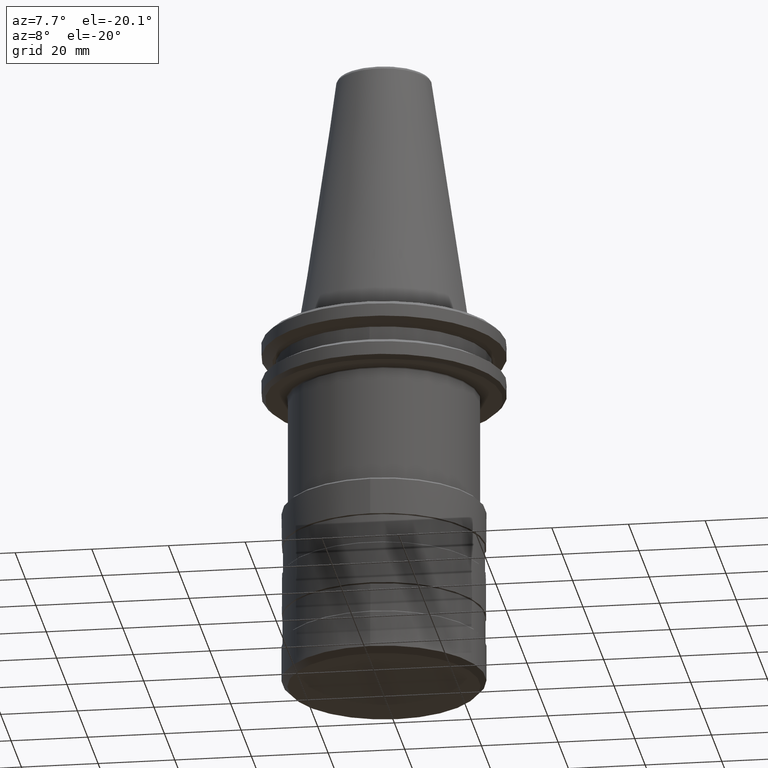
[diagram: clean part render]
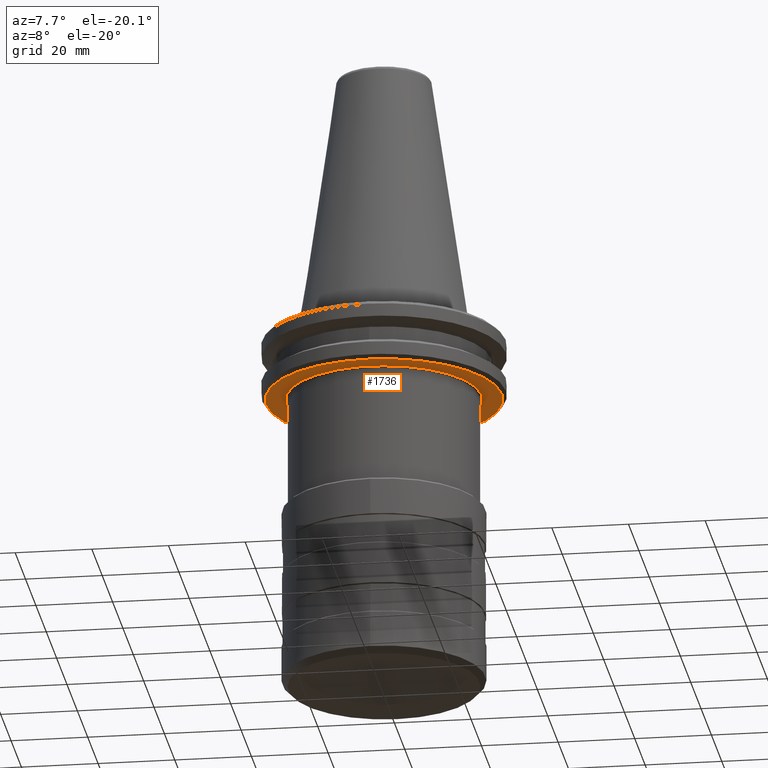
[diagram: same view with one face highlighted and labeled with its STEP entity id]
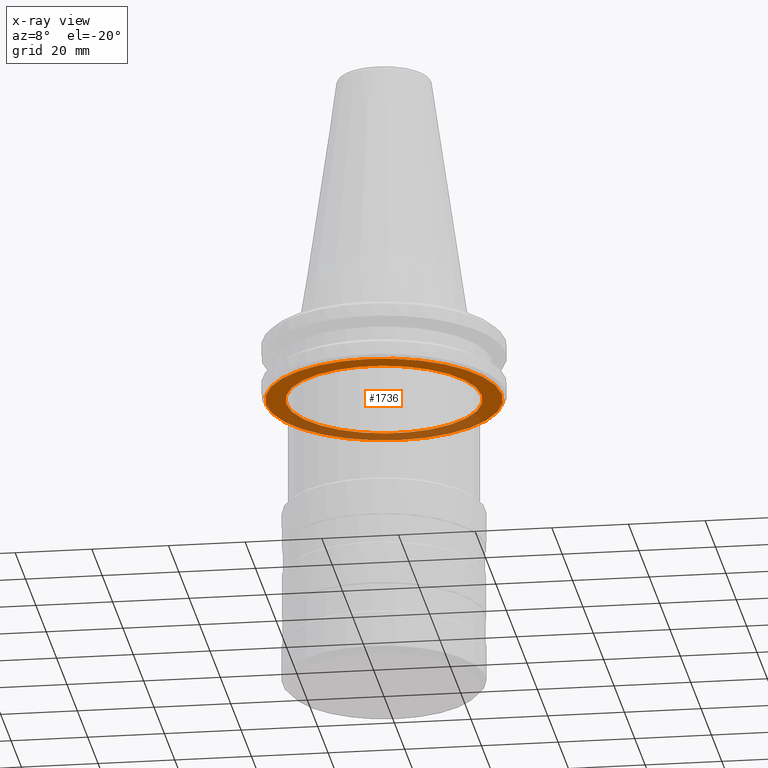
[diagram: x-ray of the same camera — body ghosted, the highlighted face saturated]
A machine part, auxiliary view. The second image highlights one B-rep face of the part: STEP entity #1736.
The next image is the same camera in x-ray: the body ghosted, the highlighted face saturated — about 34% of this face is hidden behind the body in this view.
In plain terms, the highlighted planar face has unit normal (0, 0, -1).
Its self-contained STEP definition (entity closure, byte-faithful):
#70 = VERTEX_POINT ( 'NONE', #457 ) ;
#81 = CIRCLE ( 'NONE', #856, 30.75000000016055100 ) ;
#261 = EDGE_CURVE ( 'NONE', #974, #1800, #1670, .T. ) ;
#307 = ORIENTED_EDGE ( 'NONE', *, *, #1844, .T. ) ;
#320 = CARTESIAN_POINT ( 'NONE',  ( 0.0000000000000000000, 0.0000000000000000000, -19.09999999984028600 ) ) ;
#457 = CARTESIAN_POINT ( 'NONE',  ( -30.75000000016055100, 3.827021247352811800E-015, -19.09999999984028600 ) ) ;
#473 = DIRECTION ( 'NONE',  ( -1.000000000000000000, 0.0000000000000000000, 0.0000000000000000000 ) ) ;
#567 = CARTESIAN_POINT ( 'NONE',  ( -4.851521600000000800, -29.85996502400000800, -19.10000000000000100 ) ) ;
#568 = AXIS2_PLACEMENT_3D ( 'NONE', #1310, #1649, #1737 ) ;
#618 = DIRECTION ( 'NONE',  ( -0.0000000000000000000, -0.0000000000000000000, -1.000000000000000000 ) ) ;
#651 = EDGE_LOOP ( 'NONE', ( #307, #1794 ) ) ;
#682 = VERTEX_POINT ( 'NONE', #1681 ) ;
#698 = FACE_OUTER_BOUND ( 'NONE', #651, .T. ) ;
#714 = PLANE ( 'NONE',  #1704 ) ;
#742 = CARTESIAN_POINT ( 'NONE',  ( 0.0000000000000000000, 0.0000000000000000000, -19.09999999984028600 ) ) ;
#822 = EDGE_LOOP ( 'NONE', ( #1793, #1860 ) ) ;
#856 = AXIS2_PLACEMENT_3D ( 'NONE', #742, #1694, #888 ) ;
#862 = DIRECTION ( 'NONE',  ( -1.000000000000000000, 0.0000000000000000000, -0.0000000000000000000 ) ) ;
#888 = DIRECTION ( 'NONE',  ( -1.000000000000000000, 0.0000000000000000000, 0.0000000000000000000 ) ) ;
#968 = CARTESIAN_POINT ( 'NONE',  ( -25.49999999987335300, 0.0000000000000000000, -19.09999999984028600 ) ) ;
#974 = VERTEX_POINT ( 'NONE', #968 ) ;
#996 = DIRECTION ( 'NONE',  ( 0.0000000000000000000, 0.0000000000000000000, -1.000000000000000000 ) ) ;
#1018 = CIRCLE ( 'NONE', #1763, 30.75000000016055100 ) ;
#1310 = CARTESIAN_POINT ( 'NONE',  ( 0.0000000000000000000, 0.0000000000000000000, -19.09999999984028600 ) ) ;
#1332 = DIRECTION ( 'NONE',  ( -0.0000000000000000000, -0.0000000000000000000, -1.000000000000000000 ) ) ;
#1379 = EDGE_CURVE ( 'NONE', #70, #682, #1018, .T. ) ;
#1383 = CIRCLE ( 'NONE', #1589, 25.49999999987335300 ) ;
#1394 = EDGE_CURVE ( 'NONE', #1800, #974, #1383, .T. ) ;
#1403 = FACE_BOUND ( 'NONE', #822, .T. ) ;
#1463 = CARTESIAN_POINT ( 'NONE',  ( 0.0000000000000000000, 0.0000000000000000000, -19.09999999984028600 ) ) ;
#1588 = DIRECTION ( 'NONE',  ( -1.000000000000000000, 0.0000000000000000000, 0.0000000000000000000 ) ) ;
#1589 = AXIS2_PLACEMENT_3D ( 'NONE', #320, #1332, #473 ) ;
#1649 = DIRECTION ( 'NONE',  ( -0.0000000000000000000, -0.0000000000000000000, -1.000000000000000000 ) ) ;
#1670 = CIRCLE ( 'NONE', #568, 25.49999999987335300 ) ;
#1681 = CARTESIAN_POINT ( 'NONE',  ( 30.75000000016055100, 0.0000000000000000000, -19.09999999984028600 ) ) ;
#1694 = DIRECTION ( 'NONE',  ( -0.0000000000000000000, -0.0000000000000000000, -1.000000000000000000 ) ) ;
#1704 = AXIS2_PLACEMENT_3D ( 'NONE', #567, #996, #862 ) ;
#1736 = ADVANCED_FACE ( 'NONE', ( #1403, #698 ), #714, .T. ) ;
#1737 = DIRECTION ( 'NONE',  ( -1.000000000000000000, 0.0000000000000000000, 0.0000000000000000000 ) ) ;
#1763 = AXIS2_PLACEMENT_3D ( 'NONE', #1463, #618, #1588 ) ;
#1793 = ORIENTED_EDGE ( 'NONE', *, *, #261, .F. ) ;
#1794 = ORIENTED_EDGE ( 'NONE', *, *, #1379, .T. ) ;
#1800 = VERTEX_POINT ( 'NONE', #1814 ) ;
#1814 = CARTESIAN_POINT ( 'NONE',  ( 25.49999999987335300, 3.122849337810240800E-015, -19.09999999984028600 ) ) ;
#1844 = EDGE_CURVE ( 'NONE', #682, #70, #81, .T. ) ;
#1860 = ORIENTED_EDGE ( 'NONE', *, *, #1394, .F. ) ;